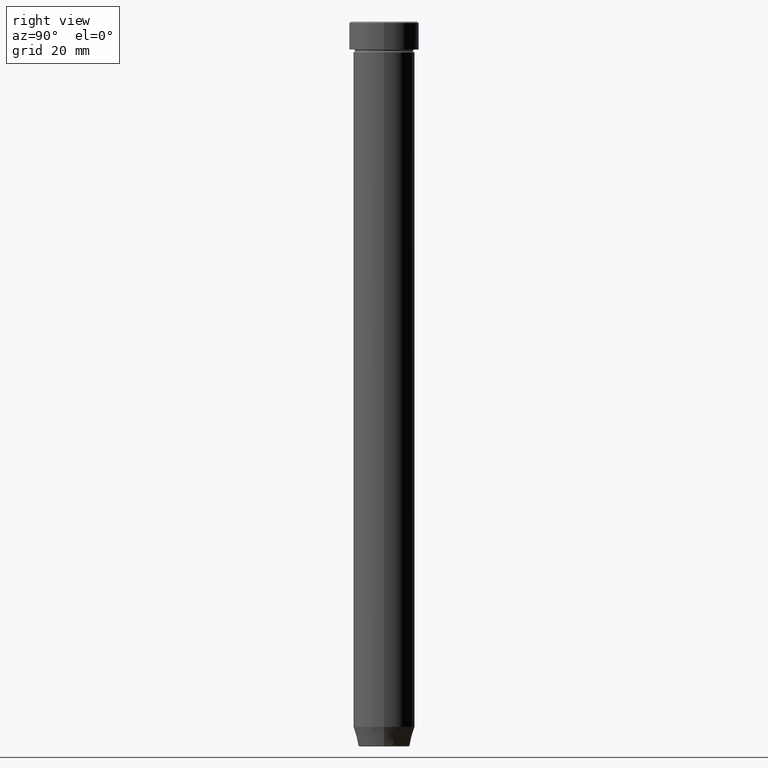
[diagram: clean part render]
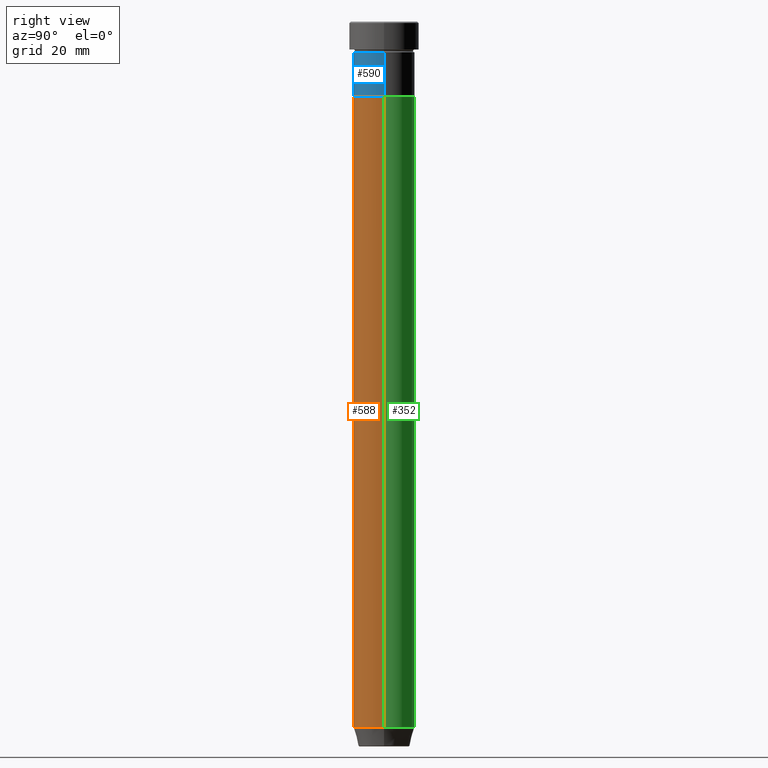
[diagram: same view with three faces highlighted in distinct colors, each labeled with its STEP entity id]
A machine part, right view with three faces highlighted in distinct colors.
Their STEP definitions:

[orange] entity #588 — the highlighted cylindrical surface (edge-blend (fillet) strip) has radius 11 mm, axis along (-0, -0, 1).
#15 = LINE ( 'NONE', #468, #137 ) ;
#51 = DIRECTION ( 'NONE',  ( -0.000000000000000000, -0.000000000000000000, 1.000000000000000000 ) ) ;
#66 = DIRECTION ( 'NONE',  ( 1.000000000000000000, 0.000000000000000000, 0.000000000000000000 ) ) ;
#67 = CARTESIAN_POINT ( 'NONE',  ( -11.00000000000000000, 1.347111479062088405E-15, -253.0000000000000000 ) ) ;
#77 = ORIENTED_EDGE ( 'NONE', *, *, #126, .F. ) ;
#126 = EDGE_CURVE ( 'NONE', #422, #220, #399, .T. ) ;
#137 = VECTOR ( 'NONE', #565, 1000.000000000000000 ) ;
#170 = CARTESIAN_POINT ( 'NONE',  ( -11.00000000000000000, 1.347111479062088405E-15, -27.00000000000000000 ) ) ;
#177 = CARTESIAN_POINT ( 'NONE',  ( -11.00000000000000000, 1.347111479062088405E-15, 0.000000000000000000 ) ) ;
#179 = DIRECTION ( 'NONE',  ( -0.000000000000000000, -0.000000000000000000, 1.000000000000000000 ) ) ;
#220 = VERTEX_POINT ( 'NONE', #170 ) ;
#242 = AXIS2_PLACEMENT_3D ( 'NONE', #447, #179, #555 ) ;
#259 = CIRCLE ( 'NONE', #242, 11.00000000000000000 ) ;
#274 = EDGE_LOOP ( 'NONE', ( #77, #311, #541, #360 ) ) ;
#276 = CYLINDRICAL_SURFACE ( 'NONE', #290, 11.00000000000000000 ) ;
#279 = CARTESIAN_POINT ( 'NONE',  ( 11.00000000000000000, 0.000000000000000000, -253.0000000000000000 ) ) ;
#290 = AXIS2_PLACEMENT_3D ( 'NONE', #330, #341, #66 ) ;
#307 = EDGE_CURVE ( 'NONE', #422, #346, #349, .T. ) ;
#311 = ORIENTED_EDGE ( 'NONE', *, *, #307, .T. ) ;
#312 = VERTEX_POINT ( 'NONE', #331 ) ;
#330 = CARTESIAN_POINT ( 'NONE',  ( 0.000000000000000000, 0.000000000000000000, 0.000000000000000000 ) ) ;
#331 = CARTESIAN_POINT ( 'NONE',  ( 11.00000000000000000, 0.000000000000000000, -27.00000000000000000 ) ) ;
#335 = FACE_OUTER_BOUND ( 'NONE', #274, .T. ) ;
#341 = DIRECTION ( 'NONE',  ( -0.000000000000000000, -0.000000000000000000, 1.000000000000000000 ) ) ;
#346 = VERTEX_POINT ( 'NONE', #279 ) ;
#348 = AXIS2_PLACEMENT_3D ( 'NONE', #559, #51, #511 ) ;
#349 = CIRCLE ( 'NONE', #348, 11.00000000000000000 ) ;
#360 = ORIENTED_EDGE ( 'NONE', *, *, #529, .F. ) ;
#393 = DIRECTION ( 'NONE',  ( -0.000000000000000000, -0.000000000000000000, 1.000000000000000000 ) ) ;
#399 = LINE ( 'NONE', #177, #418 ) ;
#418 = VECTOR ( 'NONE', #393, 1000.000000000000000 ) ;
#422 = VERTEX_POINT ( 'NONE', #67 ) ;
#447 = CARTESIAN_POINT ( 'NONE',  ( 0.000000000000000000, 0.000000000000000000, -27.00000000000000000 ) ) ;
#468 = CARTESIAN_POINT ( 'NONE',  ( 11.00000000000000000, 0.000000000000000000, 0.000000000000000000 ) ) ;
#511 = DIRECTION ( 'NONE',  ( 1.000000000000000000, 0.000000000000000000, 0.000000000000000000 ) ) ;
#529 = EDGE_CURVE ( 'NONE', #220, #312, #259, .T. ) ;
#541 = ORIENTED_EDGE ( 'NONE', *, *, #554, .T. ) ;
#554 = EDGE_CURVE ( 'NONE', #346, #312, #15, .T. ) ;
#555 = DIRECTION ( 'NONE',  ( 1.000000000000000000, 0.000000000000000000, 0.000000000000000000 ) ) ;
#559 = CARTESIAN_POINT ( 'NONE',  ( 0.000000000000000000, 0.000000000000000000, -253.0000000000000000 ) ) ;
#565 = DIRECTION ( 'NONE',  ( -0.000000000000000000, -0.000000000000000000, 1.000000000000000000 ) ) ;
#588 = ADVANCED_FACE ( 'NONE', ( #335 ), #276, .T. ) ;

[blue] entity #590 — the highlighted cylindrical surface (edge-blend (fillet) strip) has radius 11 mm, axis along (-0, -0, 1).
#20 = ORIENTED_EDGE ( 'NONE', *, *, #257, .T. ) ;
#22 = VERTEX_POINT ( 'NONE', #111 ) ;
#32 = LINE ( 'NONE', #86, #450 ) ;
#38 = CARTESIAN_POINT ( 'NONE',  ( 0.000000000000000000, 0.000000000000000000, -27.00000000000000000 ) ) ;
#41 = CARTESIAN_POINT ( 'NONE',  ( 0.000000000000000000, 0.000000000000000000, -11.00000000000000000 ) ) ;
#83 = CARTESIAN_POINT ( 'NONE',  ( -11.00000000000000000, 1.347111479062088405E-15, -11.00000000000000000 ) ) ;
#86 = CARTESIAN_POINT ( 'NONE',  ( -11.00000000000000000, 1.347111479062088405E-15, 0.000000000000000000 ) ) ;
#106 = DIRECTION ( 'NONE',  ( 1.000000000000000000, 0.000000000000000000, 0.000000000000000000 ) ) ;
#111 = CARTESIAN_POINT ( 'NONE',  ( 11.00000000000000000, 0.000000000000000000, -27.00000000000000000 ) ) ;
#154 = VERTEX_POINT ( 'NONE', #389 ) ;
#166 = DIRECTION ( 'NONE',  ( -0.000000000000000000, -0.000000000000000000, 1.000000000000000000 ) ) ;
#174 = AXIS2_PLACEMENT_3D ( 'NONE', #41, #166, #489 ) ;
#191 = ORIENTED_EDGE ( 'NONE', *, *, #222, .T. ) ;
#195 = EDGE_CURVE ( 'NONE', #382, #275, #32, .T. ) ;
#217 = DIRECTION ( 'NONE',  ( -0.000000000000000000, -0.000000000000000000, 1.000000000000000000 ) ) ;
#222 = EDGE_CURVE ( 'NONE', #22, #154, #442, .T. ) ;
#224 = EDGE_CURVE ( 'NONE', #275, #154, #501, .T. ) ;
#226 = DIRECTION ( 'NONE',  ( 1.000000000000000000, 0.000000000000000000, 0.000000000000000000 ) ) ;
#237 = CIRCLE ( 'NONE', #462, 11.00000000000000000 ) ;
#257 = EDGE_CURVE ( 'NONE', #382, #22, #237, .T. ) ;
#265 = DIRECTION ( 'NONE',  ( -0.000000000000000000, -0.000000000000000000, 1.000000000000000000 ) ) ;
#275 = VERTEX_POINT ( 'NONE', #83 ) ;
#284 = CARTESIAN_POINT ( 'NONE',  ( 0.000000000000000000, 0.000000000000000000, 0.000000000000000000 ) ) ;
#299 = DIRECTION ( 'NONE',  ( -0.000000000000000000, -0.000000000000000000, 1.000000000000000000 ) ) ;
#339 = ORIENTED_EDGE ( 'NONE', *, *, #195, .F. ) ;
#351 = DIRECTION ( 'NONE',  ( -0.000000000000000000, -0.000000000000000000, 1.000000000000000000 ) ) ;
#382 = VERTEX_POINT ( 'NONE', #496 ) ;
#389 = CARTESIAN_POINT ( 'NONE',  ( 11.00000000000000000, 0.000000000000000000, -11.00000000000000000 ) ) ;
#419 = VECTOR ( 'NONE', #265, 1000.000000000000000 ) ;
#433 = ORIENTED_EDGE ( 'NONE', *, *, #224, .F. ) ;
#442 = LINE ( 'NONE', #589, #419 ) ;
#450 = VECTOR ( 'NONE', #217, 1000.000000000000000 ) ;
#462 = AXIS2_PLACEMENT_3D ( 'NONE', #38, #351, #226 ) ;
#489 = DIRECTION ( 'NONE',  ( 1.000000000000000000, 0.000000000000000000, 0.000000000000000000 ) ) ;
#496 = CARTESIAN_POINT ( 'NONE',  ( -11.00000000000000000, 1.347111479062088405E-15, -27.00000000000000000 ) ) ;
#501 = CIRCLE ( 'NONE', #174, 11.00000000000000000 ) ;
#520 = CYLINDRICAL_SURFACE ( 'NONE', #594, 11.00000000000000000 ) ;
#531 = FACE_OUTER_BOUND ( 'NONE', #552, .T. ) ;
#552 = EDGE_LOOP ( 'NONE', ( #339, #20, #191, #433 ) ) ;
#589 = CARTESIAN_POINT ( 'NONE',  ( 11.00000000000000000, 0.000000000000000000, 0.000000000000000000 ) ) ;
#590 = ADVANCED_FACE ( 'NONE', ( #531 ), #520, .T. ) ;
#594 = AXIS2_PLACEMENT_3D ( 'NONE', #284, #299, #106 ) ;

[green] entity #352 — the highlighted cylindrical surface (edge-blend (fillet) strip) has radius 11 mm, axis along (-0, -0, 1).
#13 = DIRECTION ( 'NONE',  ( 1.000000000000000000, 0.000000000000000000, 0.000000000000000000 ) ) ;
#15 = LINE ( 'NONE', #468, #137 ) ;
#67 = CARTESIAN_POINT ( 'NONE',  ( -11.00000000000000000, 1.347111479062088405E-15, -253.0000000000000000 ) ) ;
#85 = ORIENTED_EDGE ( 'NONE', *, *, #202, .F. ) ;
#108 = CIRCLE ( 'NONE', #522, 11.00000000000000000 ) ;
#121 = CARTESIAN_POINT ( 'NONE',  ( 0.000000000000000000, 0.000000000000000000, -27.00000000000000000 ) ) ;
#126 = EDGE_CURVE ( 'NONE', #422, #220, #399, .T. ) ;
#137 = VECTOR ( 'NONE', #565, 1000.000000000000000 ) ;
#170 = CARTESIAN_POINT ( 'NONE',  ( -11.00000000000000000, 1.347111479062088405E-15, -27.00000000000000000 ) ) ;
#177 = CARTESIAN_POINT ( 'NONE',  ( -11.00000000000000000, 1.347111479062088405E-15, 0.000000000000000000 ) ) ;
#182 = AXIS2_PLACEMENT_3D ( 'NONE', #478, #253, #13 ) ;
#202 = EDGE_CURVE ( 'NONE', #312, #220, #254, .T. ) ;
#220 = VERTEX_POINT ( 'NONE', #170 ) ;
#223 = DIRECTION ( 'NONE',  ( 1.000000000000000000, 0.000000000000000000, 0.000000000000000000 ) ) ;
#253 = DIRECTION ( 'NONE',  ( -0.000000000000000000, -0.000000000000000000, 1.000000000000000000 ) ) ;
#254 = CIRCLE ( 'NONE', #528, 11.00000000000000000 ) ;
#267 = ORIENTED_EDGE ( 'NONE', *, *, #554, .F. ) ;
#279 = CARTESIAN_POINT ( 'NONE',  ( 11.00000000000000000, 0.000000000000000000, -253.0000000000000000 ) ) ;
#312 = VERTEX_POINT ( 'NONE', #331 ) ;
#331 = CARTESIAN_POINT ( 'NONE',  ( 11.00000000000000000, 0.000000000000000000, -27.00000000000000000 ) ) ;
#346 = VERTEX_POINT ( 'NONE', #279 ) ;
#352 = ADVANCED_FACE ( 'NONE', ( #465 ), #459, .T. ) ;
#358 = CARTESIAN_POINT ( 'NONE',  ( 0.000000000000000000, 0.000000000000000000, -253.0000000000000000 ) ) ;
#377 = ORIENTED_EDGE ( 'NONE', *, *, #126, .T. ) ;
#381 = EDGE_CURVE ( 'NONE', #346, #422, #108, .T. ) ;
#393 = DIRECTION ( 'NONE',  ( -0.000000000000000000, -0.000000000000000000, 1.000000000000000000 ) ) ;
#399 = LINE ( 'NONE', #177, #418 ) ;
#418 = VECTOR ( 'NONE', #393, 1000.000000000000000 ) ;
#422 = VERTEX_POINT ( 'NONE', #67 ) ;
#459 = CYLINDRICAL_SURFACE ( 'NONE', #182, 11.00000000000000000 ) ;
#465 = FACE_OUTER_BOUND ( 'NONE', #585, .T. ) ;
#468 = CARTESIAN_POINT ( 'NONE',  ( 11.00000000000000000, 0.000000000000000000, 0.000000000000000000 ) ) ;
#478 = CARTESIAN_POINT ( 'NONE',  ( 0.000000000000000000, 0.000000000000000000, 0.000000000000000000 ) ) ;
#522 = AXIS2_PLACEMENT_3D ( 'NONE', #358, #551, #543 ) ;
#528 = AXIS2_PLACEMENT_3D ( 'NONE', #121, #550, #223 ) ;
#533 = ORIENTED_EDGE ( 'NONE', *, *, #381, .T. ) ;
#543 = DIRECTION ( 'NONE',  ( 1.000000000000000000, 0.000000000000000000, 0.000000000000000000 ) ) ;
#550 = DIRECTION ( 'NONE',  ( -0.000000000000000000, -0.000000000000000000, 1.000000000000000000 ) ) ;
#551 = DIRECTION ( 'NONE',  ( -0.000000000000000000, -0.000000000000000000, 1.000000000000000000 ) ) ;
#554 = EDGE_CURVE ( 'NONE', #346, #312, #15, .T. ) ;
#565 = DIRECTION ( 'NONE',  ( -0.000000000000000000, -0.000000000000000000, 1.000000000000000000 ) ) ;
#585 = EDGE_LOOP ( 'NONE', ( #533, #377, #85, #267 ) ) ;